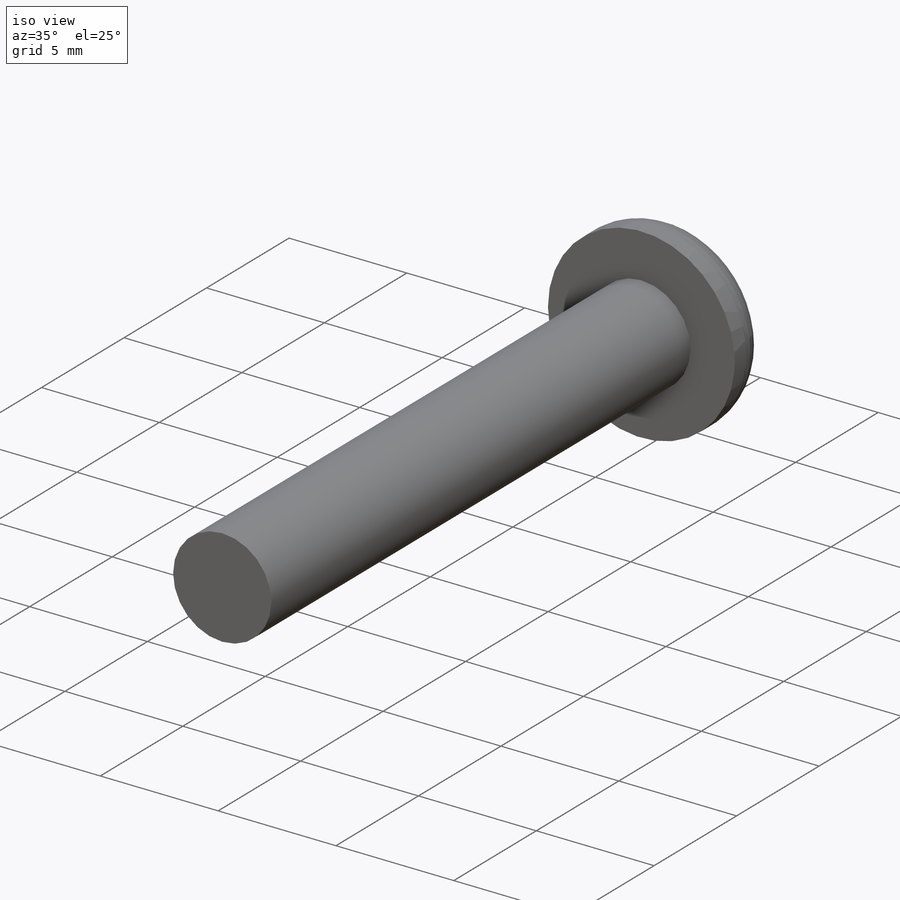
[diagram: iso view]
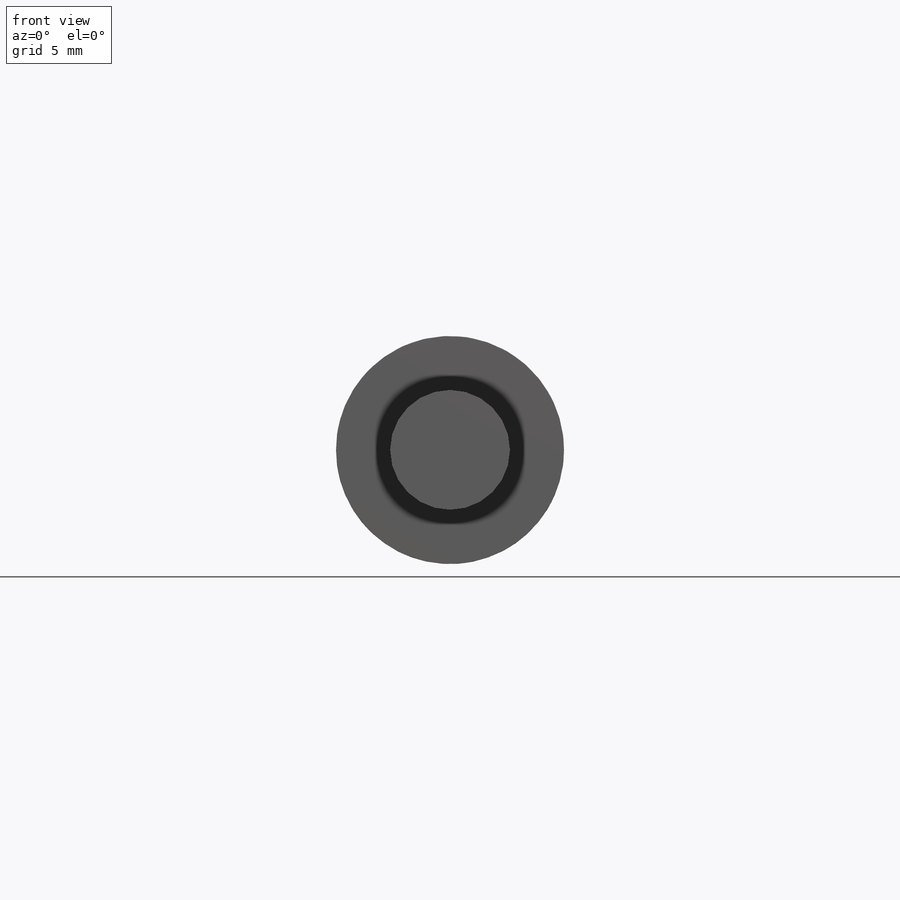
[diagram: front view]
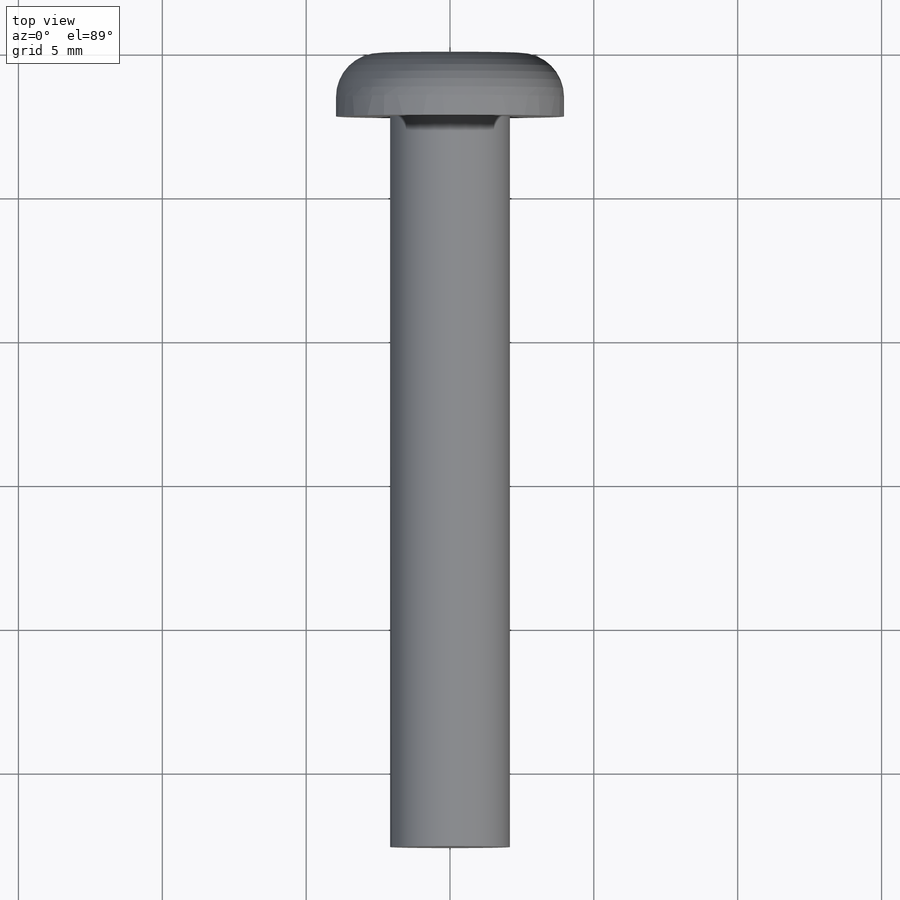
[diagram: top view]
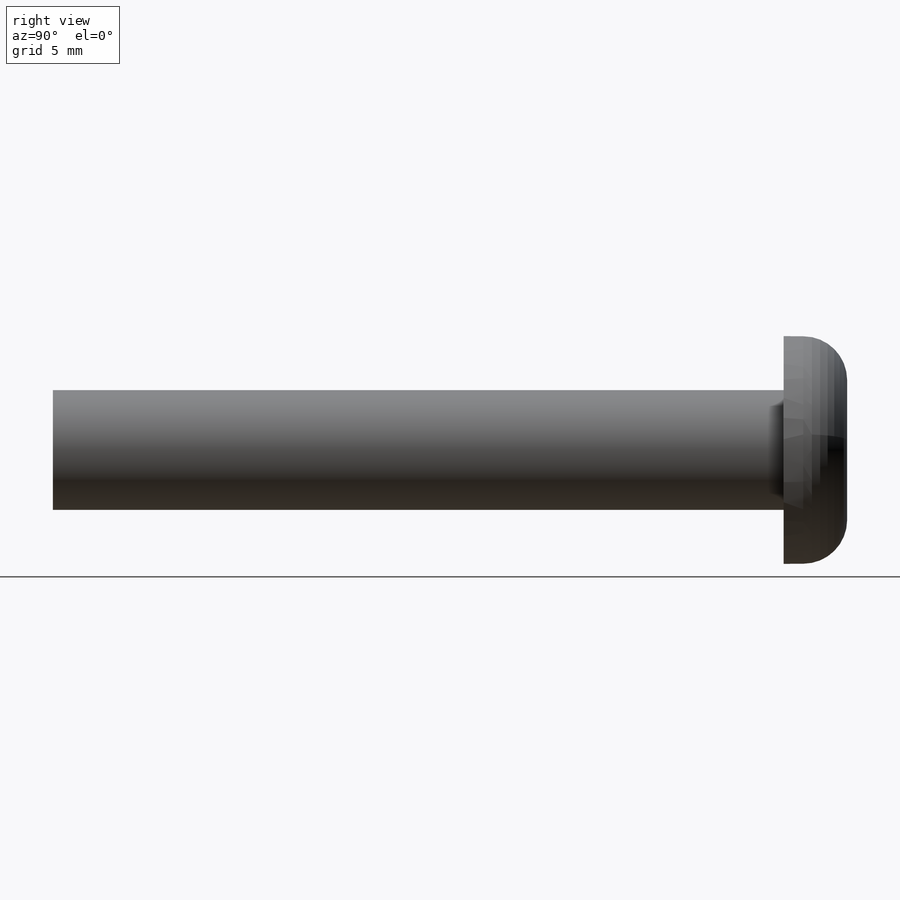
[diagram: right view]
SOLIDWORKS PART (.sldprt)
format: sldprt  version: not decoded by parser v0  size: 190,464 bytes
history: native  units: mm
features: sketch x3, extrude x2, material x1, fillet x1, cut_extrude x1 (+16 scaffold rows collapsed)
feature tree (24):
  scaffold x16  (default folders/planes/origin — collapsed)
  material  "Material <not specified>"
  sketch  "Sketch1"  dims[D1=7.9248mm]
  extrude  "Extrude1"  Depth=2.2098mm
  fillet  "Fillet1"  Radius=1.524mm
  sketch  "Sketch2"  dims[D1=4.1656mm]
  extrude  "Extrude2"  Depth=25.4mm
  sketch  "Sketch3"  dims[D1=~2.38125mm]
  cut_extrude  "Extrude3"  Depth=1.016mm
decode coverage: 7 of 7 modeling features carry decoded parameters
note: ~ marks probable driven/reference dimensions
note: suppression state not decoded; provenance and decode notes live in map.json
